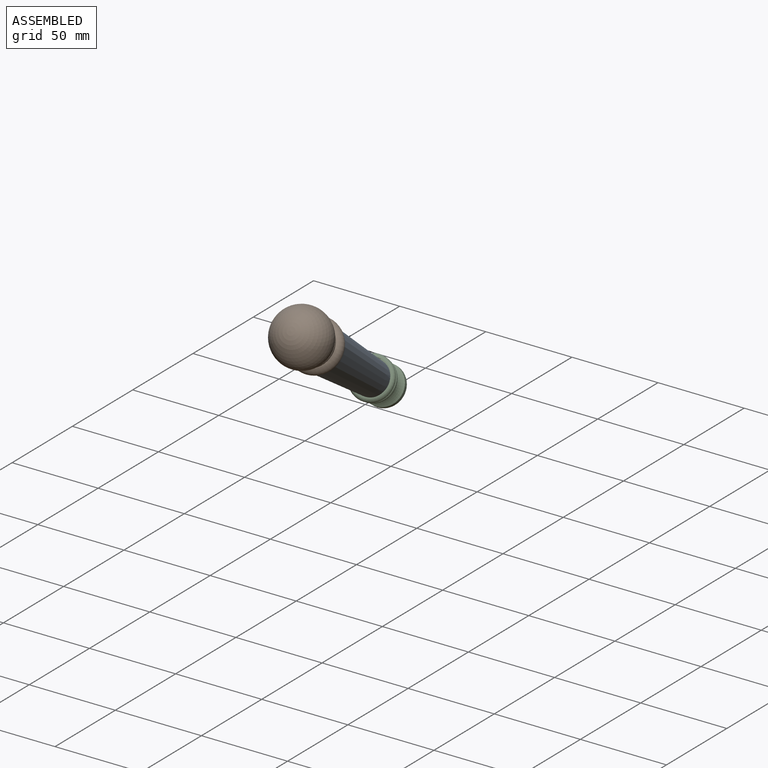
[diagram: assembled view]
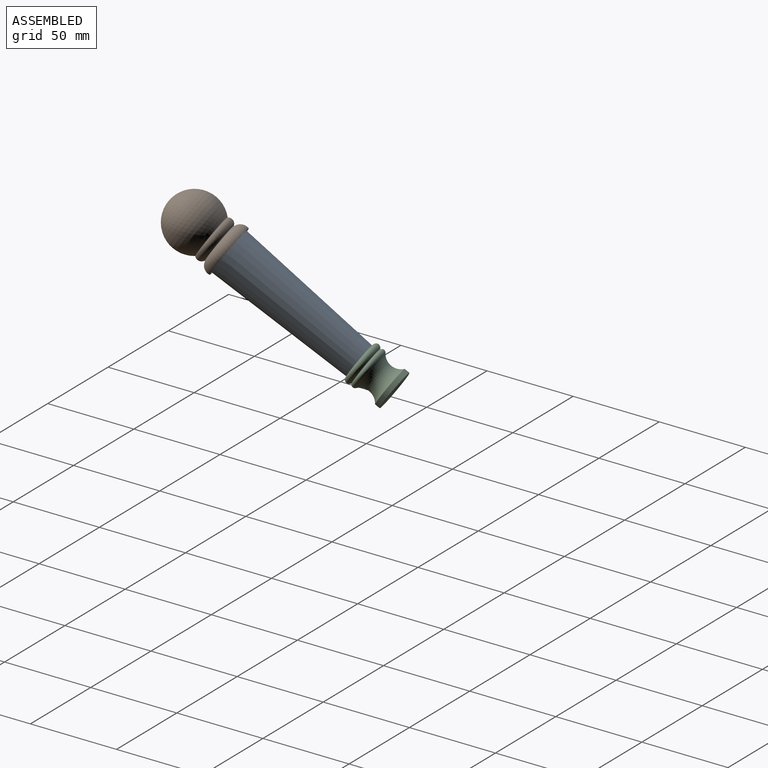
[diagram: assembled view, second angle]
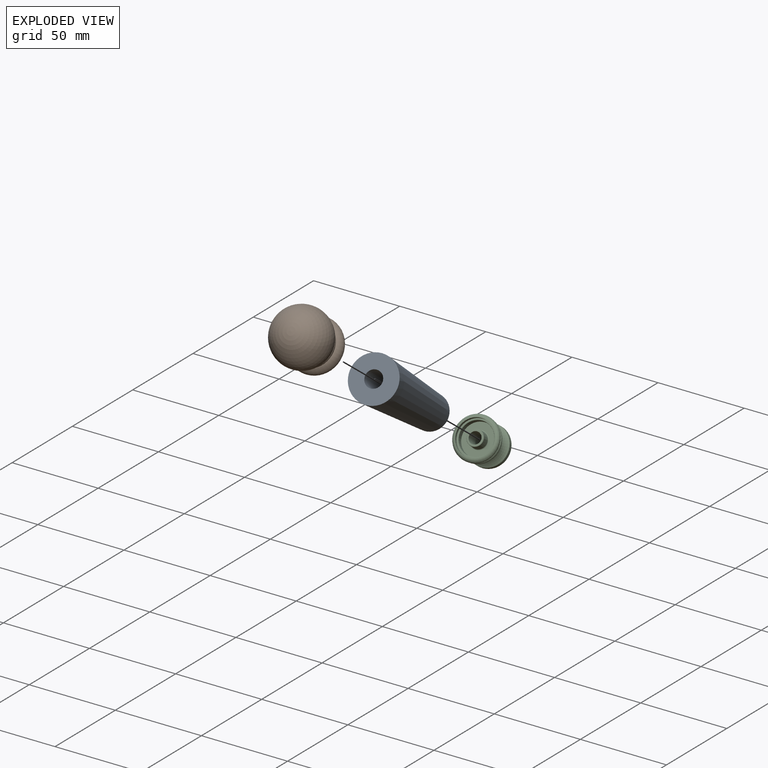
[diagram: exploded view]
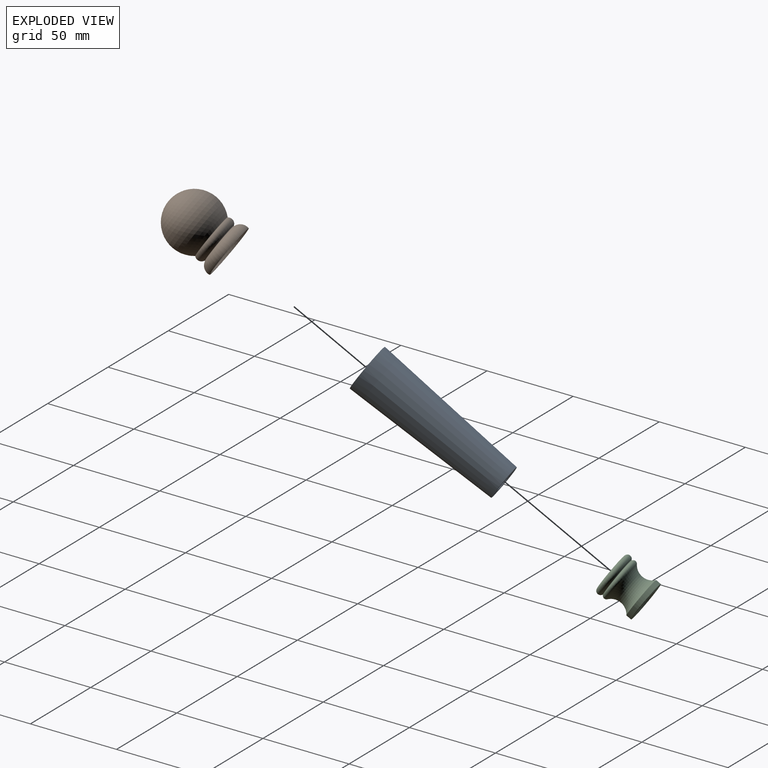
[diagram: exploded view, second angle]
ASSEMBLY  parts=3 mates=2
PART A: 4 faces, bbox 26x26x85 mm
  f0: plane 26x26mm, normal (0,0,1), area 460mm2, adj f2,f3
  f1: plane 19x19mm, normal (0,0,-1), area 212.6mm2, adj f2,f3
  f2: cone r=9.5mm half-angle=2.4deg, axis (0,0,1), area 6013.4mm2, adj f0,f1
  f3: cylinder r=4.75mm len=85mm, axis (0,0,1), area 2536.8mm2, adj f0,f1
PART B: 18 faces, bbox 32x37.6x32 mm
  f0: plane 16x16mm, normal (0,-1,0), area 137.4mm2, adj f11,f17
  f1: plane 29x29mm, normal (0,-1,0), area 88mm2, adj f2,f7
  f2: torus R=9.6mm, axis (0,1,0), area 628.9mm2, adj f1,f3
  f3: torus R=11.13mm, axis (0,1,0), area 41.5mm2, adj f2,f4
  f4: torus R=9.77mm, axis (0,1,0), area 418.7mm2, adj f3,f5
  f5: torus R=12.33mm, axis (0,1,0), area 26.1mm2, adj f4,f6
  f6: sphere r=16mm, area 2656.3mm2, adj f5
  f7: cylinder r=13.5mm len=27mm, axis (0,1,0), area 169.6mm2, adj f1,f8
  f8: plane 27x27mm, normal (0,-1,0), area 70.7mm2, adj f7,f15
  f9: cone r=12.5mm half-angle=32deg, axis (0,-1,0), area 322.6mm2, adj f10,f15
  f10: cylinder r=10mm len=22mm, axis (0,1,0), area 1382.3mm2, adj f9,f17
  f11: cone r=4.5mm half-angle=1deg, axis (0,1,0), area 160.9mm2, adj f0,f16
  f12: plane 8.3x8.3mm, normal (0,-1,0), area 20.9mm2, adj f13,f16
  f13: cylinder r=3.25mm len=10mm, axis (0,-1,0), area 204.2mm2, adj f12,f14
  f14: plane 6.5x6.5mm, normal (0,-1,0), area 33.2mm2, adj f13
  f15: torus R=12.64mm, axis (0,-1,0), area 19.9mm2, adj f8,f9
  f16: torus R=4.15mm, axis (0,-1,0), area 10.5mm2, adj f11,f12
  f17: torus R=8mm, axis (0,-1,0), area 183mm2, adj f0,f10
PART C: 20 faces, bbox 33.6x22x33.6 mm
  f0: plane 18x18mm, normal (0,1,0), area 176.2mm2, adj f12,f19
  f1: plane 21.5x21.5mm, normal (0,-1,0), area 250mm2, adj f9,f18
  f2: torus R=10mm, axis (0,-1,0), area 385.5mm2, adj f3,f10
  f3: torus R=10.99mm, axis (0,-1,0), area 36.4mm2, adj f2,f4
  f4: torus R=10mm, axis (0,-1,0), area 234mm2, adj f3,f5
  f5: torus R=15.5mm, axis (0,-1,0), area 789.1mm2, adj f4,f6
  f6: cylinder r=11mm len=22mm, axis (0,-1,0), area 190.1mm2, adj f5,f18
  f7: plane 9x9mm, normal (0,-1,0), area 30.4mm2, adj f8,f15
  f8: cylinder r=4.5mm len=11.45mm, axis (0,-1,0), area 323.9mm2, adj f7,f9
  f9: cone r=4.5mm half-angle=70deg, axis (0,-1,0), area 52.7mm2, adj f1,f8
  f10: cylinder r=10mm len=20mm, axis (0,1,0), area 125.7mm2, adj f2,f11
  f11: plane 20x20mm, normal (0,1,0), area 45.4mm2, adj f10,f16
  f12: cylinder r=9mm len=18mm, axis (0,1,0), area 212.1mm2, adj f0,f16
  f13: cone r=4.5mm half-angle=1deg, axis (0,-1,0), area 147mm2, adj f17,f19
  f14: plane 8.3x8.3mm, normal (0,1,0), area 20.9mm2, adj f15,f17
  f15: cylinder r=3.25mm len=10mm, axis (0,1,0), area 204.2mm2, adj f7,f14
  f16: torus R=9.25mm, axis (0,1,0), area 22.4mm2, adj f11,f12
  f17: torus R=4.15mm, axis (0,1,0), area 10.5mm2, adj f13,f14
  f18: torus R=10.75mm, axis (0,-1,0), area 26.9mm2, adj f1,f6
  f19: torus R=4.99mm, axis (0,1,0), area 22.8mm2, adj f0,f13
PLACE A rot(axis=(0.55,0.49,-0.68),79.1deg) t=(-78.97,32.56,-10.91)mm
PLACE B rot(axis=(1,0.09,-0.02),145.5deg) t=(-64.23,-34.59,35.59)mm
PLACE C rot(axis=(0.19,-0.27,-0.94),162.7deg) t=(-82.52,48.74,-22.11)mm
MATE revolute A.f2 <-> C.f2  axis (-0.18,0.81,-0.56) through (-78.97,32.56,-10.91)mm
MATE revolute A.f2 <-> B.f2  axis (0.18,-0.81,0.56) through (-63.88,-36.21,36.71)mm
